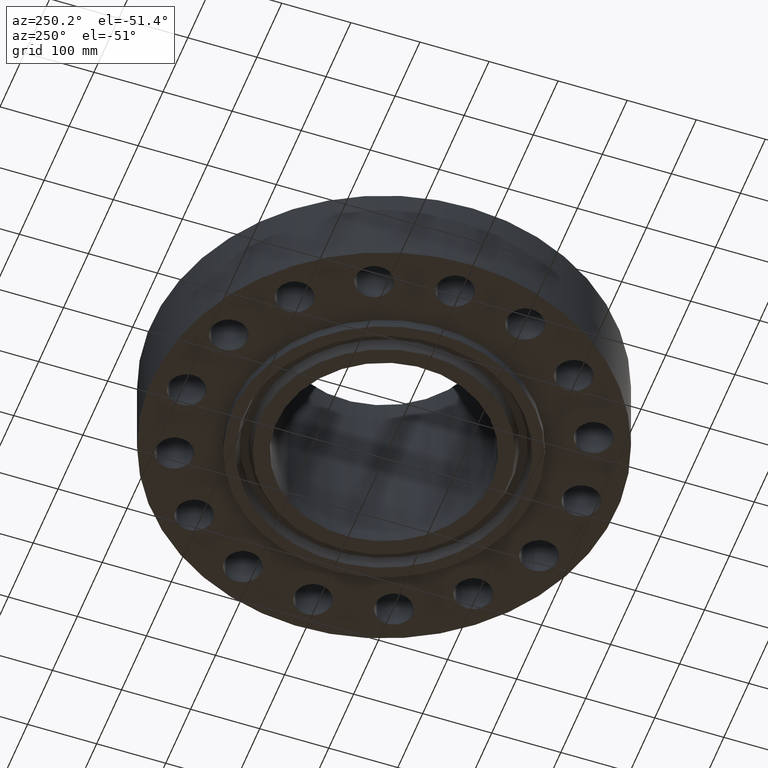
[diagram: clean part render]
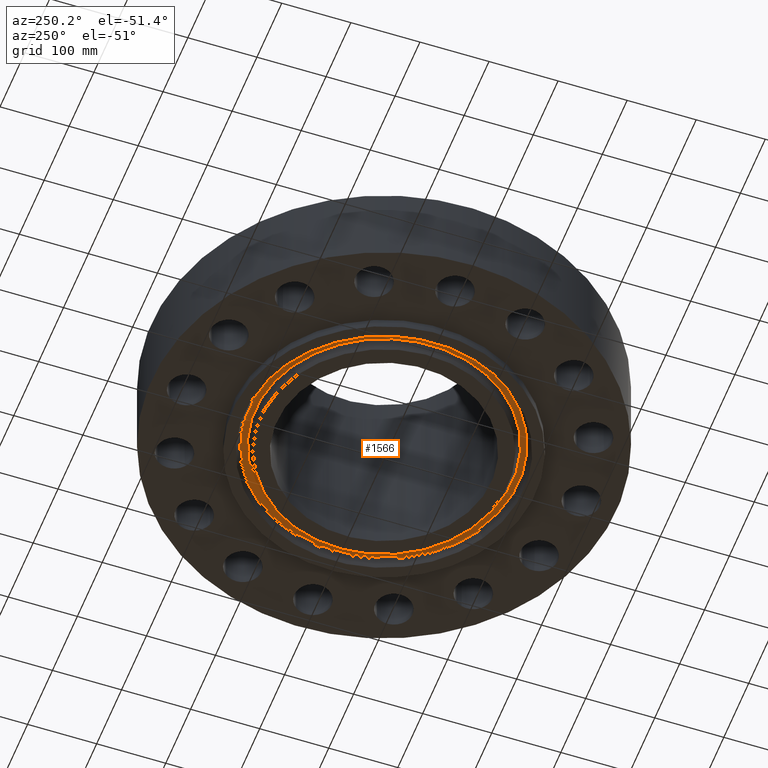
[diagram: same view with one face highlighted and labeled with its STEP entity id]
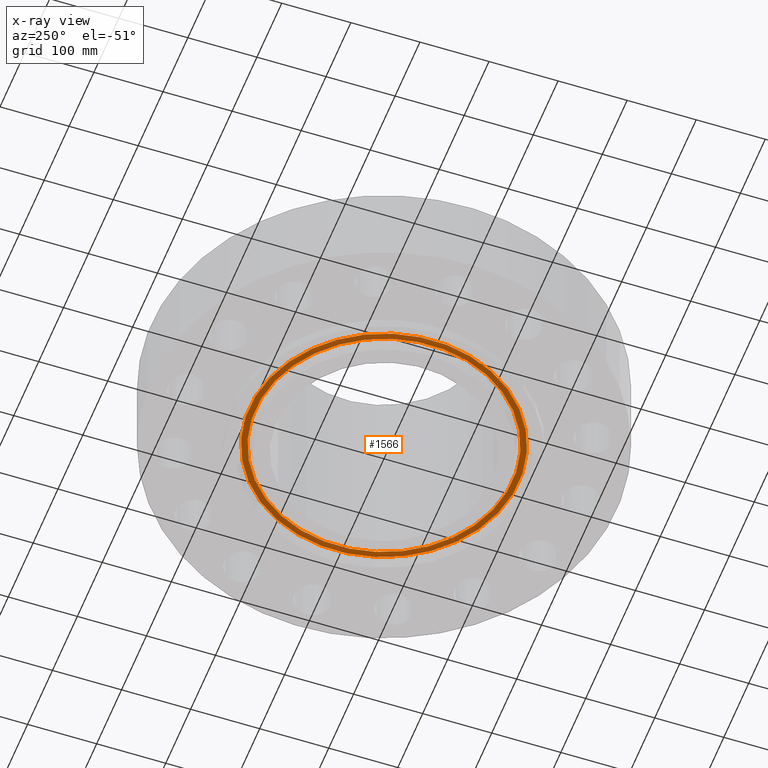
[diagram: x-ray of the same camera — body ghosted, the highlighted face saturated]
A machine part, auxiliary view. The second image highlights one B-rep face of the part: STEP entity #1566.
The next image is the same camera in x-ray: the body ghosted, the highlighted face saturated — about 0% of this face is hidden behind the body in this view.
In plain terms, the highlighted planar face has unit normal (0, 0, -1).
Its self-contained STEP definition (entity closure, byte-faithful):
#484=AXIS2_PLACEMENT_3D('Plane Axis2P3D',#481,#482,#483) ;
#1488=AXIS2_PLACEMENT_3D('Circle Axis2P3D',#1486,#1487,$) ;
#1534=AXIS2_PLACEMENT_3D('Circle Axis2P3D',#1532,#1533,$) ;
#1550=AXIS2_PLACEMENT_3D('Circle Axis2P3D',#1548,#1549,$) ;
#1559=AXIS2_PLACEMENT_3D('Circle Axis2P3D',#1557,#1558,$) ;
#481=CARTESIAN_POINT('Axis2P3D Location',(0.,8.62500000003,0.)) ;
#1483=CARTESIAN_POINT('Vertex',(-3.67830705357,6.73309589825,-1.48612530855E-016)) ;
#1486=CARTESIAN_POINT('Axis2P3D Location',(0.,0.,-1.48612530855E-016)) ;
#1490=CARTESIAN_POINT('Vertex',(3.67830705357,-6.73309589825,-1.48612530855E-016)) ;
#1532=CARTESIAN_POINT('Axis2P3D Location',(0.,0.,-1.48612530855E-016)) ;
#1548=CARTESIAN_POINT('Axis2P3D Location',(0.,0.,0.)) ;
#1552=CARTESIAN_POINT('Vertex',(3.51307602552,-6.43064253016,3.40934629609E-016)) ;
#1554=CARTESIAN_POINT('Vertex',(-3.51307602552,6.43064253016,3.40934629609E-016)) ;
#1557=CARTESIAN_POINT('Axis2P3D Location',(0.,0.,0.)) ;
#482=DIRECTION('Axis2P3D Direction',(0.,0.,-0.0393700787402)) ;
#483=DIRECTION('Axis2P3D XDirection',(0.0393700787402,0.,0.)) ;
#1487=DIRECTION('Axis2P3D Direction',(0.,0.,0.0393700787402)) ;
#1533=DIRECTION('Axis2P3D Direction',(0.,0.,0.0393700787402)) ;
#1549=DIRECTION('Axis2P3D Direction',(0.,0.,-0.0393700787402)) ;
#1558=DIRECTION('Axis2P3D Direction',(0.,0.,-0.0393700787402)) ;
#1545=ORIENTED_EDGE('',*,*,#1492,.F.) ;
#1546=ORIENTED_EDGE('',*,*,#1536,.F.) ;
#1563=ORIENTED_EDGE('',*,*,#1556,.T.) ;
#1564=ORIENTED_EDGE('',*,*,#1561,.T.) ;
#1565=FACE_BOUND('',#1562,.T.) ;
#1566=ADVANCED_FACE('PartBody',(#1547,#1565),#485,.T.) ;
#1489=CIRCLE('generated circle',#1488,7.67232188815) ;
#1535=CIRCLE('generated circle',#1534,7.67232188815) ;
#1551=CIRCLE('generated circle',#1550,7.32767811191) ;
#1560=CIRCLE('generated circle',#1559,7.32767811191) ;
#1492=EDGE_CURVE('',#1484,#1491,#1489,.T.) ;
#1536=EDGE_CURVE('',#1491,#1484,#1535,.T.) ;
#1556=EDGE_CURVE('',#1553,#1555,#1551,.F.) ;
#1561=EDGE_CURVE('',#1555,#1553,#1560,.F.) ;
#1544=EDGE_LOOP('',(#1545,#1546)) ;
#1562=EDGE_LOOP('',(#1563,#1564)) ;
#1547=FACE_OUTER_BOUND('',#1544,.T.) ;
#485=PLANE('',#484) ;
#1484=VERTEX_POINT('',#1483) ;
#1491=VERTEX_POINT('',#1490) ;
#1553=VERTEX_POINT('',#1552) ;
#1555=VERTEX_POINT('',#1554) ;